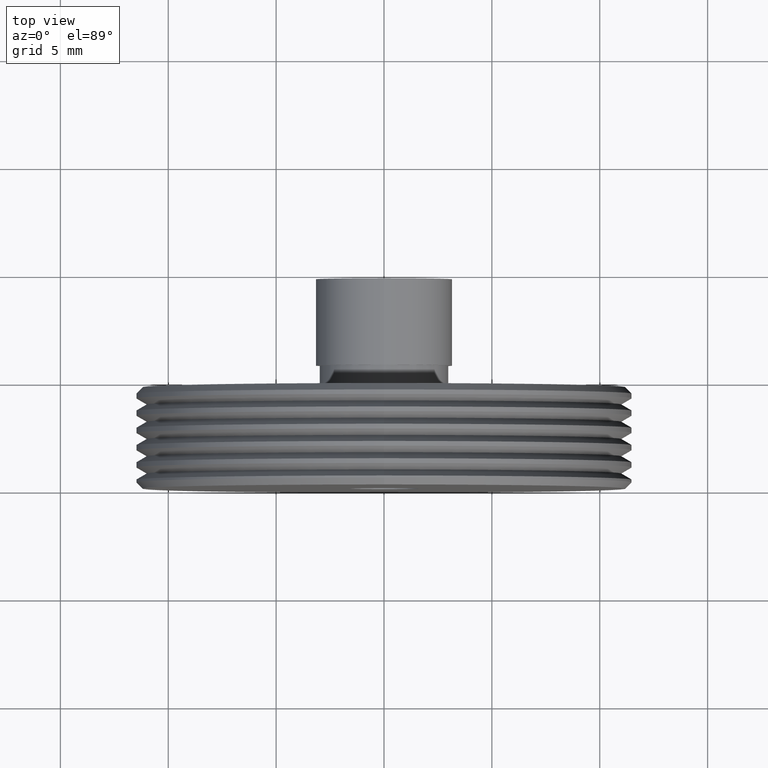
[diagram: clean part render]
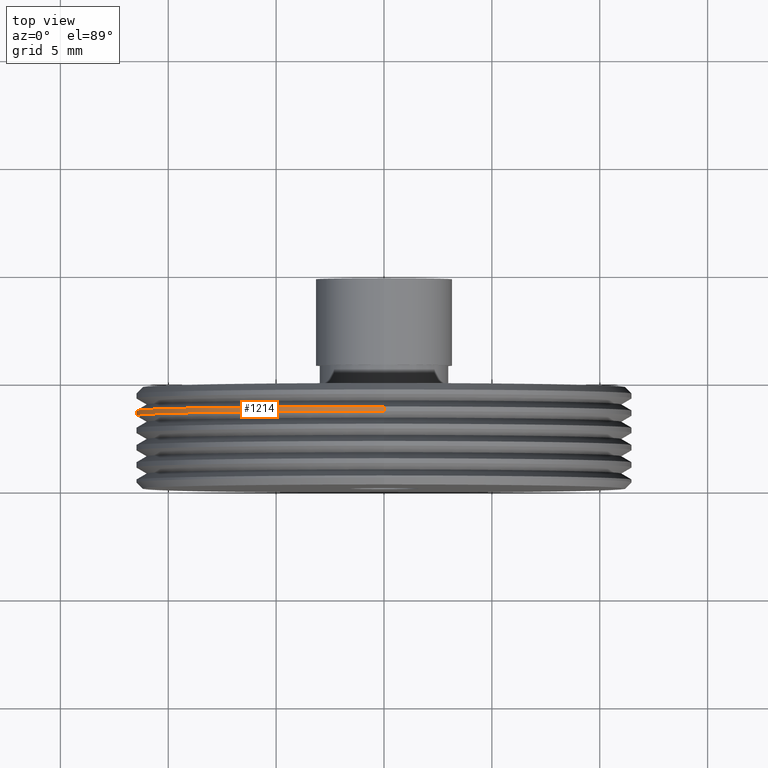
[diagram: same view with one face highlighted and labeled with its STEP entity id]
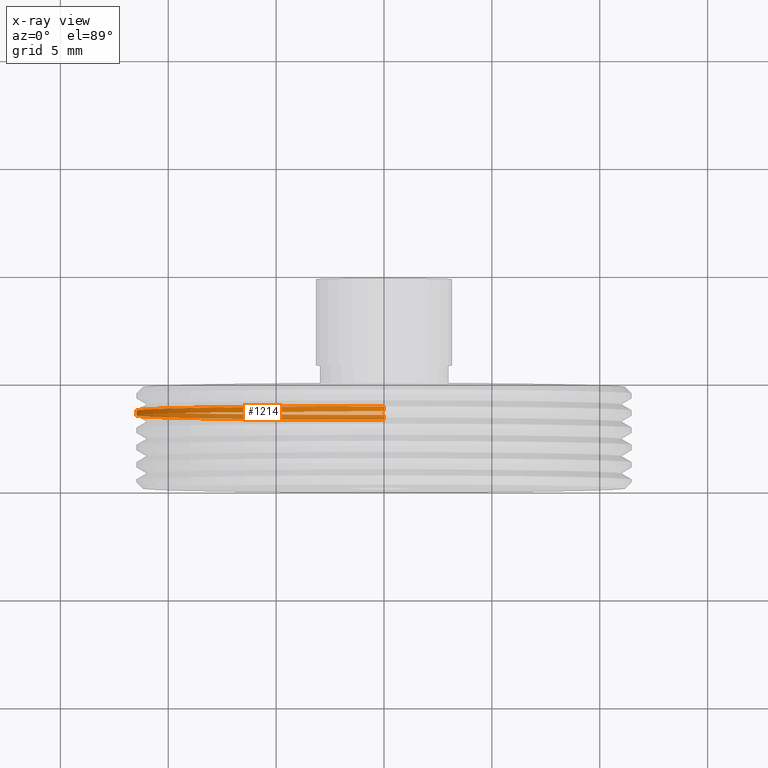
[diagram: x-ray of the same camera — body ghosted, the highlighted face saturated]
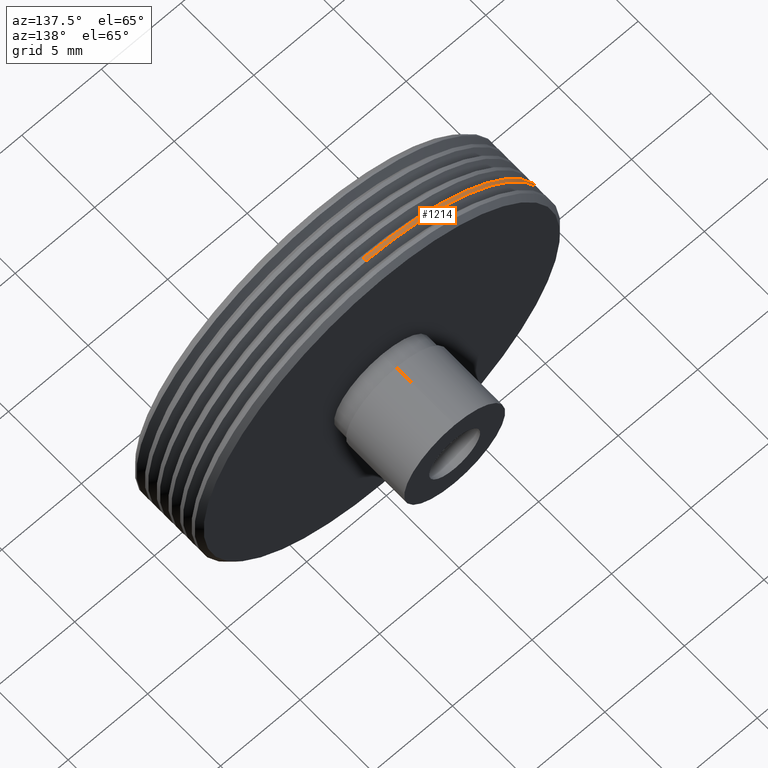
[diagram: same view with one face highlighted and labeled with its STEP entity id]
A machine part, top view. The second image highlights one B-rep face of the part: STEP entity #1214.
The next image is the same camera in x-ray: the body ghosted, the highlighted face saturated — about 48% of this face is hidden behind the body in this view.
A second angle (auxiliary view) of the same face is appended — the face is thin or edge-on in the first view.
In plain terms, the highlighted cylindrical surface (partial cylindrical patch) has radius 11.5 mm, axis along (-0, 1, -0).
Its self-contained STEP definition (entity closure, byte-faithful):
#48 = AXIS2_PLACEMENT_3D ( 'NONE', #115, #996, #122 ) ;
#94 = VECTOR ( 'NONE', #132, 1000.000000000000000 ) ;
#115 = CARTESIAN_POINT ( 'NONE',  ( 0.0000000000000000000, 3.611324865405186800, 0.0000000000000000000 ) ) ;
#122 = DIRECTION ( 'NONE',  ( 0.0000000000000000000, 0.0000000000000000000, -1.000000000000000000 ) ) ;
#132 = DIRECTION ( 'NONE',  ( -0.0000000000000000000, 1.000000000000000000, -0.0000000000000000000 ) ) ;
#137 = CIRCLE ( 'NONE', #663, 11.50000000000000500 ) ;
#139 = DIRECTION ( 'NONE',  ( 0.0000000000000000000, 0.0000000000000000000, 1.000000000000000000 ) ) ;
#199 = LINE ( 'NONE', #818, #1220 ) ;
#232 = CARTESIAN_POINT ( 'NONE',  ( 0.0000000000000000000, 41.06170623995065900, 0.0000000000000000000 ) ) ;
#264 = ORIENTED_EDGE ( 'NONE', *, *, #1088, .F. ) ;
#305 = AXIS2_PLACEMENT_3D ( 'NONE', #232, #1109, #139 ) ;
#414 = EDGE_CURVE ( 'NONE', #657, #786, #137, .T. ) ;
#415 = DIRECTION ( 'NONE',  ( 0.0000000000000000000, 0.0000000000000000000, 1.000000000000000000 ) ) ;
#467 = ORIENTED_EDGE ( 'NONE', *, *, #550, .T. ) ;
#531 = CYLINDRICAL_SURFACE ( 'NONE', #305, 11.50000000000000500 ) ;
#550 = EDGE_CURVE ( 'NONE', #657, #750, #199, .T. ) ;
#633 = LINE ( 'NONE', #795, #94 ) ;
#647 = FACE_OUTER_BOUND ( 'NONE', #764, .T. ) ;
#651 = CARTESIAN_POINT ( 'NONE',  ( 1.408343819019456800E-015, 3.611324865405186800, -11.50000000000000500 ) ) ;
#657 = VERTEX_POINT ( 'NONE', #1229 ) ;
#663 = AXIS2_PLACEMENT_3D ( 'NONE', #997, #793, #415 ) ;
#690 = CIRCLE ( 'NONE', #48, 11.50000000000000500 ) ;
#707 = VERTEX_POINT ( 'NONE', #651 ) ;
#711 = DIRECTION ( 'NONE',  ( -0.0000000000000000000, 1.000000000000000000, -0.0000000000000000000 ) ) ;
#750 = VERTEX_POINT ( 'NONE', #762 ) ;
#762 = CARTESIAN_POINT ( 'NONE',  ( 0.0000000000000000000, 3.611324865405186800, 11.50000000000000500 ) ) ;
#764 = EDGE_LOOP ( 'NONE', ( #1101, #1166, #467, #264 ) ) ;
#786 = VERTEX_POINT ( 'NONE', #1246 ) ;
#793 = DIRECTION ( 'NONE',  ( 0.0000000000000000000, -1.000000000000000000, 0.0000000000000000000 ) ) ;
#795 = CARTESIAN_POINT ( 'NONE',  ( 1.408343819019456800E-015, 41.06170623995065900, -11.50000000000000500 ) ) ;
#818 = CARTESIAN_POINT ( 'NONE',  ( 0.0000000000000000000, 41.06170623995065900, 11.50000000000000500 ) ) ;
#996 = DIRECTION ( 'NONE',  ( -0.0000000000000000000, 1.000000000000000000, -0.0000000000000000000 ) ) ;
#997 = CARTESIAN_POINT ( 'NONE',  ( 0.0000000000000000000, 3.388675134594817200, 0.0000000000000000000 ) ) ;
#1020 = EDGE_CURVE ( 'NONE', #786, #707, #633, .T. ) ;
#1088 = EDGE_CURVE ( 'NONE', #707, #750, #690, .T. ) ;
#1101 = ORIENTED_EDGE ( 'NONE', *, *, #1020, .F. ) ;
#1109 = DIRECTION ( 'NONE',  ( -0.0000000000000000000, 1.000000000000000000, -0.0000000000000000000 ) ) ;
#1166 = ORIENTED_EDGE ( 'NONE', *, *, #414, .F. ) ;
#1214 = ADVANCED_FACE ( 'NONE', ( #647 ), #531, .T. ) ;
#1220 = VECTOR ( 'NONE', #711, 1000.000000000000000 ) ;
#1229 = CARTESIAN_POINT ( 'NONE',  ( 0.0000000000000000000, 3.388675134594817200, 11.50000000000000500 ) ) ;
#1246 = CARTESIAN_POINT ( 'NONE',  ( 1.408343819019456800E-015, 3.388675134594817200, -11.50000000000000500 ) ) ;